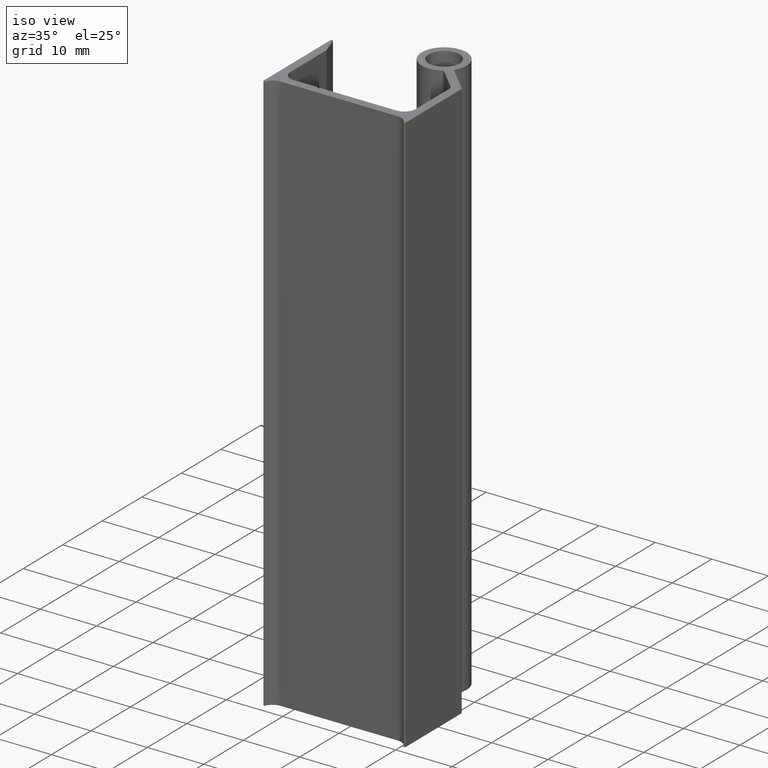
[diagram: clean part render]
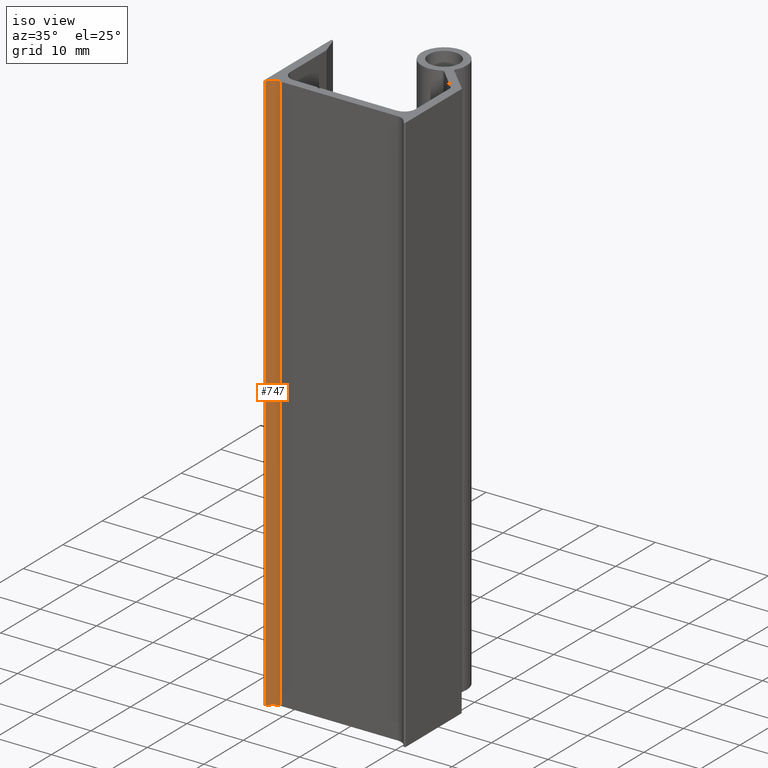
[diagram: same view with one face highlighted and labeled with its STEP entity id]
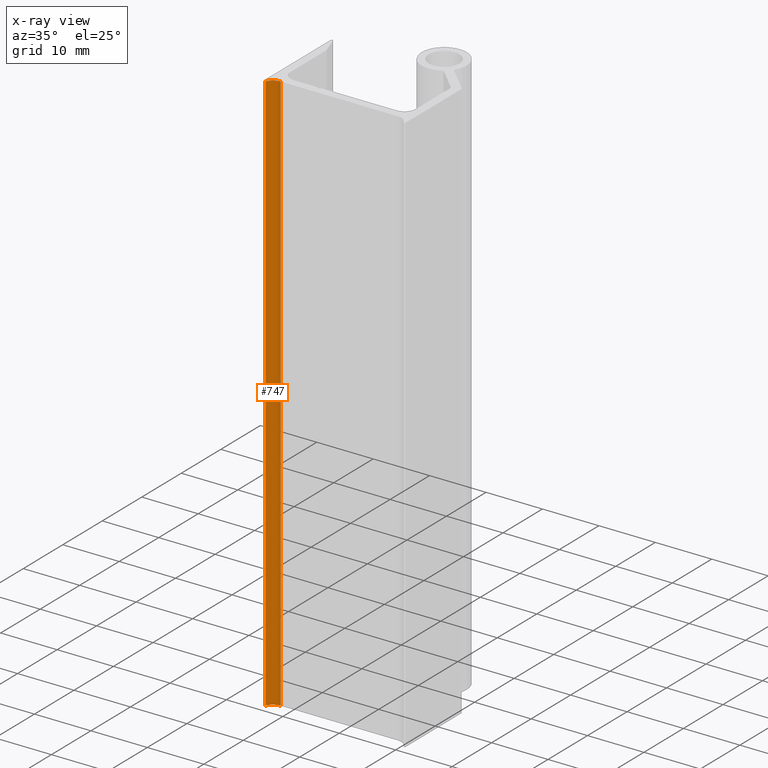
[diagram: x-ray of the same camera — body ghosted, the highlighted face saturated]
A machine part, iso view. The second image highlights one B-rep face of the part: STEP entity #747.
The next image is the same camera in x-ray: the body ghosted, the highlighted face saturated — about 0% of this face is hidden behind the body in this view.
In plain terms, the highlighted cylindrical surface (edge-blend (fillet) strip) has radius 2 mm, axis along (0, 0, -1).
Its self-contained STEP definition (entity closure, byte-faithful):
#687=CARTESIAN_POINT('',(-12.217501273619860,-1.181818181825179,0.0));
#688=VERTEX_POINT('',#687);
#696=CARTESIAN_POINT('',(-12.217501273619860,-1.181818181825179,100.0));
#697=VERTEX_POINT('',#696);
#698=CARTESIAN_POINT('',(-12.217501273619860,-1.181818181825179,0.0));
#699=DIRECTION('',(0.0,0.0,1.0));
#700=VECTOR('',#699,100.0);
#701=LINE('',#698,#700);
#702=EDGE_CURVE('',#688,#697,#701,.T.);
#715=CARTESIAN_POINT('',(-10.392514009990805,-2.0,0.0));
#716=DIRECTION('',(0.0,0.0,-1.0));
#717=DIRECTION('',(-0.912493631814514,0.409090909087404,0.0));
#718=AXIS2_PLACEMENT_3D('',#715,#716,#717);
#719=CYLINDRICAL_SURFACE('',#718,2.0);
#720=CARTESIAN_POINT('',(-10.392514009990805,0.0,0.0));
#721=VERTEX_POINT('',#720);
#722=CARTESIAN_POINT('',(-10.392514009990805,-2.0,0.0));
#723=DIRECTION('',(0.0,0.0,-1.0));
#724=DIRECTION('',(0.0,1.0,0.0));
#725=AXIS2_PLACEMENT_3D('',#722,#723,#724);
#726=CIRCLE('',#725,2.0);
#727=EDGE_CURVE('',#688,#721,#726,.T.);
#728=ORIENTED_EDGE('',*,*,#727,.T.);
#729=CARTESIAN_POINT('',(-10.392514009990805,0.0,100.0));
#730=VERTEX_POINT('',#729);
#731=CARTESIAN_POINT('',(-10.392514009990805,0.0,0.0));
#732=DIRECTION('',(0.0,0.0,1.0));
#733=VECTOR('',#732,100.0);
#734=LINE('',#731,#733);
#735=EDGE_CURVE('',#721,#730,#734,.T.);
#736=ORIENTED_EDGE('',*,*,#735,.T.);
#737=CARTESIAN_POINT('',(-10.392514009990805,-2.0,100.0));
#738=DIRECTION('',(0.0,0.0,-1.0));
#739=DIRECTION('',(0.0,1.0,0.0));
#740=AXIS2_PLACEMENT_3D('',#737,#738,#739);
#741=CIRCLE('',#740,2.0);
#742=EDGE_CURVE('',#697,#730,#741,.T.);
#743=ORIENTED_EDGE('',*,*,#742,.F.);
#744=ORIENTED_EDGE('',*,*,#702,.F.);
#745=EDGE_LOOP('',(#728,#736,#743,#744));
#746=FACE_OUTER_BOUND('',#745,.T.);
#747=ADVANCED_FACE('',(#746),#719,.F.);